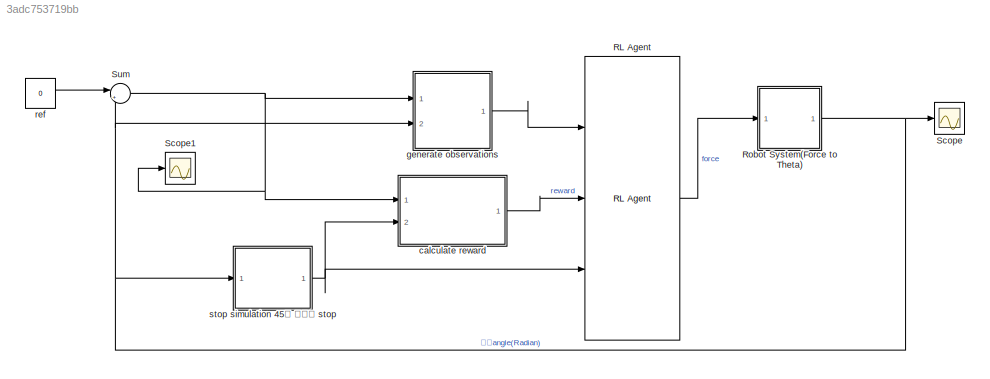
MODEL slx_3adc753719bb
KIND model
CONFIG AbsTol = auto
CONFIG EnableMultiTasking = off
CONFIG FixedStep = auto
CONFIG MaxStep = auto
CONFIG MinStep = auto
CONFIG RelTol = 1e-3
CONFIG SampleTimeConstraint = Unconstrained
CONFIG Solver = VariableStepAuto
CONFIG SolverName = VariableStepAuto
CONFIG StartTime = 0.0
CONFIG StopTime = 10
BLOCK [Reference] RL Agent  REF=rllib/RL Agent
  Ports = [3, 1]
  SourceBlock = rllib/RL Agent
  SourceProductBaseCode = RL
  SourceType = RL Agent
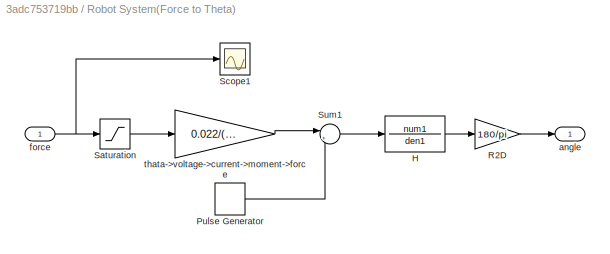
BLOCK [SubSystem] Robot System(Force to Theta)
  Ports = [1, 1]
  RequestExecContextInheritance = off
BLOCK [TransferFcn] Robot System(Force to Theta)/H
  Denominator = den1
  Numerator = num1
BLOCK [DiscretePulseGenerator] Robot System(Force to Theta)/Pulse Generator
  Period = 10
  PhaseDelay = 0.1
  Ports = [0, 1]
  PulseType = Time based
  PulseWidth = 0.1
BLOCK [Gain] Robot System(Force to Theta)/R2D
  Gain = 180/pi
BLOCK [Saturate] Robot System(Force to Theta)/Saturation
  LowerLimit = -12
  UpperLimit = 12
BLOCK [Scope] Robot System(Force to Theta)/Scope1
  Floating = off
  NumInputPorts = 1
  Ports = [1]
  ScopeSpecificationString = Simulink.scopes.TimeScopeBlockCfg('CurrentConfiguration', extmgr.ConfigurationSet(extmgr.Configuration('Core','General UI',true),extmgr.Configuration('Core','Source UI',true),extmgr.Configuration('Sources','WiredSimulink',true,'DataLoggingVariableName','ScopeData1'),extmgr.Configuration('Visuals','Time Domain',true,'SerializedDisplays',{struct('MinYLimReal','-1.5476','MaxYLimReal','0.1948','YLabel...<+1458ch>
BLOCK [Sum] Robot System(Force to Theta)/Sum1
  Inputs = |++
  Ports = [2, 1]
BLOCK [Outport] Robot System(Force to Theta)/angle
BLOCK [Inport] Robot System(Force to Theta)/force
BLOCK [Gain] Robot System(Force to Theta)/thata->voltage->current->moment->force
  Gain = 0.022/(1.2*0.04)
BLOCK [Scope] Scope
  Floating = off
  NumInputPorts = 1
  Ports = [1]
  ScopeSpecificationString = Simulink.scopes.TimeScopeBlockCfg('CurrentConfiguration', extmgr.ConfigurationSet(extmgr.Configuration('Core','General UI',true),extmgr.Configuration('Core','Source UI',true),extmgr.Configuration('Sources','WiredSimulink',true),extmgr.Configuration('Visuals','Time Domain',true,'SerializedDisplays',{struct('MinYLimReal','-621497.62353','MaxYLimReal','5593478.6118','YLabelReal','','MinYLimMag','    ...<+1436ch>
BLOCK [Scope] Scope1
  Floating = off
  NumInputPorts = 1
  Ports = [1]
  ScopeSpecificationString = Simulink.scopes.TimeScopeBlockCfg('CurrentConfiguration', extmgr.ConfigurationSet(extmgr.Configuration('Core','General UI',true),extmgr.Configuration('Core','Source UI',true),extmgr.Configuration('Sources','WiredSimulink',true,'DataLoggingVariableName','ScopeData1'),extmgr.Configuration('Visuals','Time Domain',true,'SerializedDisplays',{struct('MinYLimReal','-32.18578','MaxYLimReal','289.67205','Y...<+1402ch>
BLOCK [Sum] Sum
  Inputs = |+-
  Ports = [2, 1]
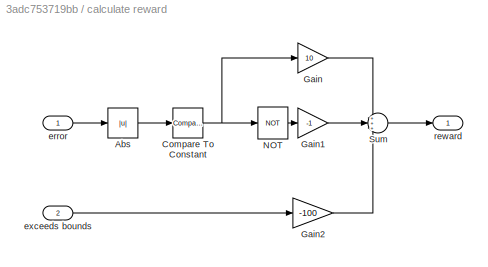
BLOCK [SubSystem] calculate reward
  Ports = [2, 1]
  RequestExecContextInheritance = off
BLOCK [Abs] calculate reward/Abs
  SaturateOnIntegerOverflow = off
BLOCK [Reference] calculate reward/Compare To Constant  REF=simulink/Logic and Bit
Operations/Compare
To Constant
  Ports = [1, 1]
  SourceBlock = simulink/Logic and Bit\nOperations/Compare\nTo Constant
  SourceProductBaseCode = SL
  SourceType = Compare To Constant
BLOCK [Gain] calculate reward/Gain
  Gain = 10
BLOCK [Gain] calculate reward/Gain1
  Gain = -1
BLOCK [Gain] calculate reward/Gain2
  Gain = -100
BLOCK [Logic] calculate reward/NOT
  AllPortsSameDT = off
  IconShape = distinctive
  Operator = NOT
  OutDataTypeStr = boolean
  Ports = [1, 1]
BLOCK [Sum] calculate reward/Sum
  Inputs = +++
  OutDataTypeStr = double
  Ports = [3, 1]
BLOCK [Inport] calculate reward/error
BLOCK [Inport] calculate reward/exceeds bounds
  Port = 2
BLOCK [Outport] calculate reward/reward
  VectorParamsAs1DForOutWhenUnconnected = off
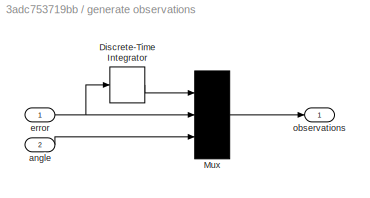
BLOCK [SubSystem] generate observations
  Ports = [2, 1]
  RequestExecContextInheritance = off
BLOCK [DiscreteIntegrator] generate observations/Discrete-Time Integrator
  ICPrevOutput = DiscIntNeverNeededParam
  ICPrevScaledInput = DiscIntNeverNeededParam
  InitialConditionSetting = Auto
  Ports = [1, 1]
  SampleTime = Ts
BLOCK [Mux] generate observations/Mux
  DisplayOption = bar
  Inputs = 3
  Ports = [3, 1]
BLOCK [Inport] generate observations/angle
  Port = 2
BLOCK [Inport] generate observations/error
BLOCK [Outport] generate observations/observations
  VectorParamsAs1DForOutWhenUnconnected = off
BLOCK [Constant] ref
  Value = 0
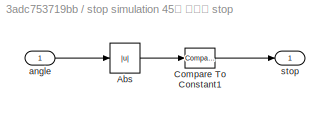
BLOCK [SubSystem] stop simulation 45도 넘으면 stop
  Ports = [1, 1]
  RequestExecContextInheritance = off
BLOCK [Abs] stop simulation 45도 넘으면 stop/Abs
  SaturateOnIntegerOverflow = off
BLOCK [Reference] stop simulation 45도 넘으면 stop/Compare To Constant1  REF=simulink/Logic and Bit
Operations/Compare
To Constant
  Ports = [1, 1]
  SourceBlock = simulink/Logic and Bit\nOperations/Compare\nTo Constant
  SourceProductBaseCode = SL
  SourceType = Compare To Constant
BLOCK [Inport] stop simulation 45도 넘으면 stop/angle
BLOCK [Outport] stop simulation 45도 넘으면 stop/stop
  VectorParamsAs1DForOutWhenUnconnected = off
LINE RL Agent:1 -> Robot System(Force to Theta):1
LINE Robot System(Force to Theta)/H:1 -> Robot System(Force to Theta)/R2D:1
LINE Robot System(Force to Theta)/Pulse Generator:1 -> Robot System(Force to Theta)/Sum1:2
LINE Robot System(Force to Theta)/R2D:1 -> Robot System(Force to Theta)/angle:1
LINE Robot System(Force to Theta)/Saturation:1 -> Robot System(Force to Theta)/thata->voltage->current->moment->force:1
LINE Robot System(Force to Theta)/Sum1:1 -> Robot System(Force to Theta)/H:1
NET Robot System(Force to Theta)/force:1 -> Robot System(Force to Theta)/Saturation:1, Robot System(Force to Theta)/Scope1:1
LINE Robot System(Force to Theta)/thata->voltage->current->moment->force:1 -> Robot System(Force to Theta)/Sum1:1
NET Robot System(Force to Theta):1 -> Scope:1, Sum:2, generate observations:2, stop simulation 45도 넘으면 stop:1
NET Sum:1 -> Scope1:1, calculate reward:1, generate observations:1
LINE calculate reward/Abs:1 -> calculate reward/Compare To Constant:1
NET calculate reward/Compare To Constant:1 -> calculate reward/Gain:1, calculate reward/NOT:1
LINE calculate reward/Gain1:1 -> calculate reward/Sum:2
LINE calculate reward/Gain2:1 -> calculate reward/Sum:3
LINE calculate reward/Gain:1 -> calculate reward/Sum:1
LINE calculate reward/NOT:1 -> calculate reward/Gain1:1
LINE calculate reward/Sum:1 -> calculate reward/reward:1
LINE calculate reward/error:1 -> calculate reward/Abs:1
LINE calculate reward/exceeds bounds:1 -> calculate reward/Gain2:1
LINE calculate reward:1 -> RL Agent:2
LINE generate observations/Discrete-Time Integrator:1 -> generate observations/Mux:1
LINE generate observations/Mux:1 -> generate observations/observations:1
LINE generate observations/angle:1 -> generate observations/Mux:3
NET generate observations/error:1 -> generate observations/Discrete-Time Integrator:1, generate observations/Mux:2
LINE generate observations:1 -> RL Agent:1
LINE ref:1 -> Sum:1
LINE stop simulation 45도 넘으면 stop/Abs:1 -> stop simulation 45도 넘으면 stop/Compare To Constant1:1
LINE stop simulation 45도 넘으면 stop/Compare To Constant1:1 -> stop simulation 45도 넘으면 stop/stop:1
LINE stop simulation 45도 넘으면 stop/angle:1 -> stop simulation 45도 넘으면 stop/Abs:1
NET stop simulation 45도 넘으면 stop:1 -> RL Agent:3, calculate reward:2
note: NET lines group one-source signal fan-out (src -> all destinations, sorted); 1:1 wires keep LINE
